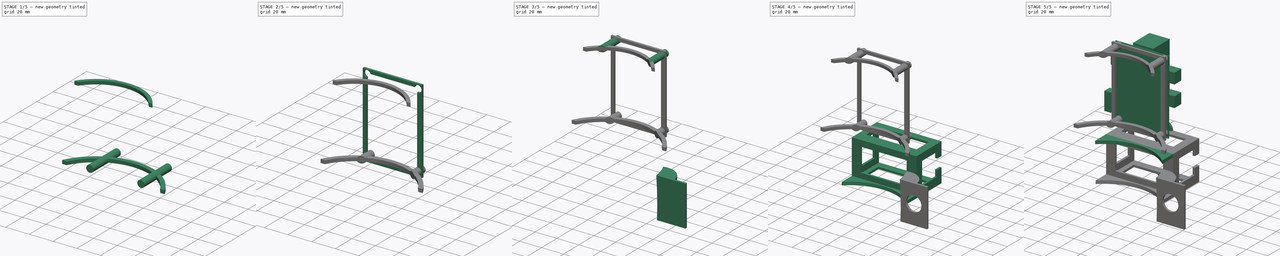
[diagram: build sequence overview — one tinted view per stage of 5, left to right]
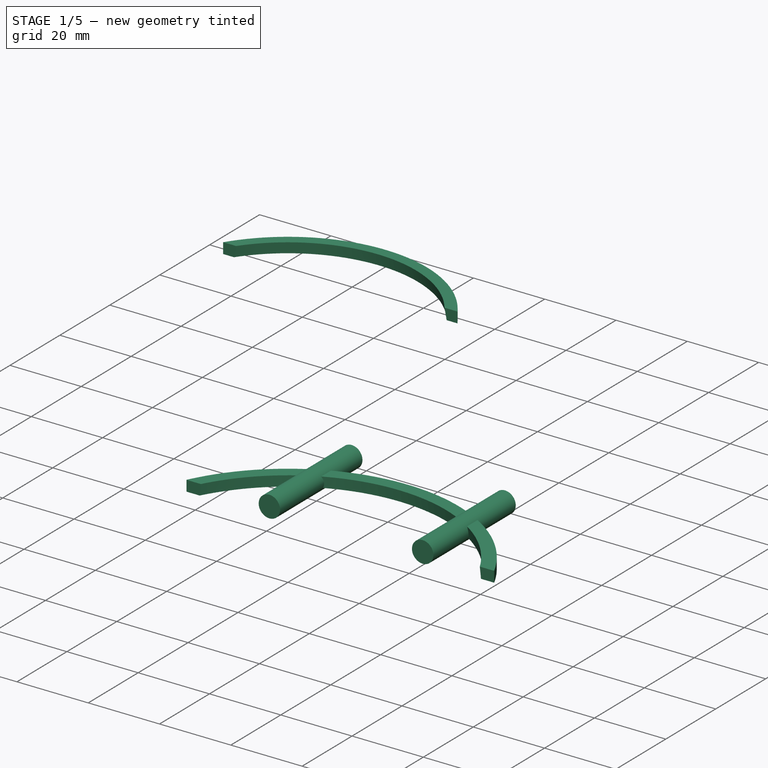
[diagram: stage 1 of 5 — iso view after this stage's code; geometry added in this stage tinted green]
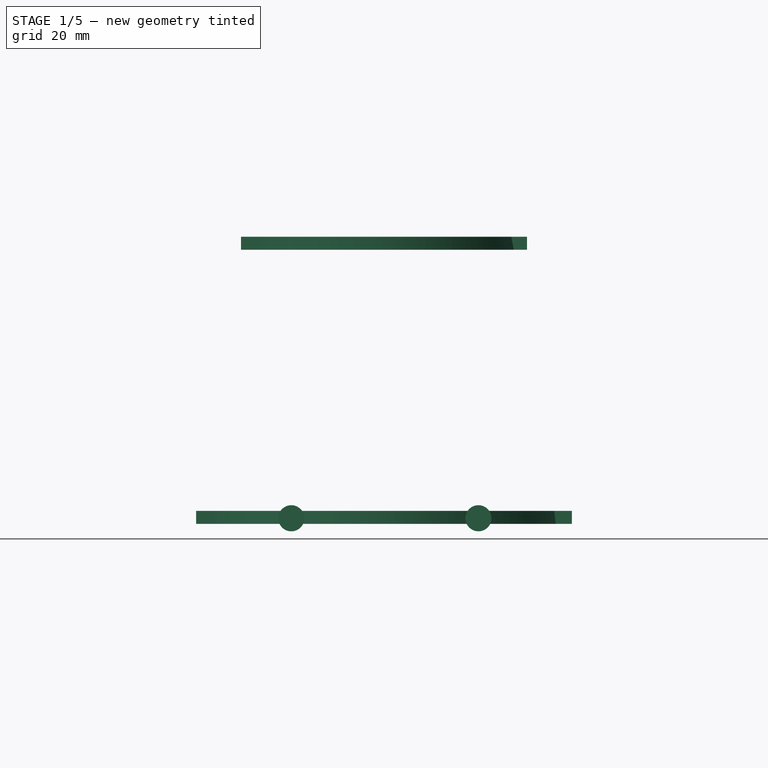
[diagram: stage 1 of 5 — front view after this stage's code; geometry added in this stage tinted green]
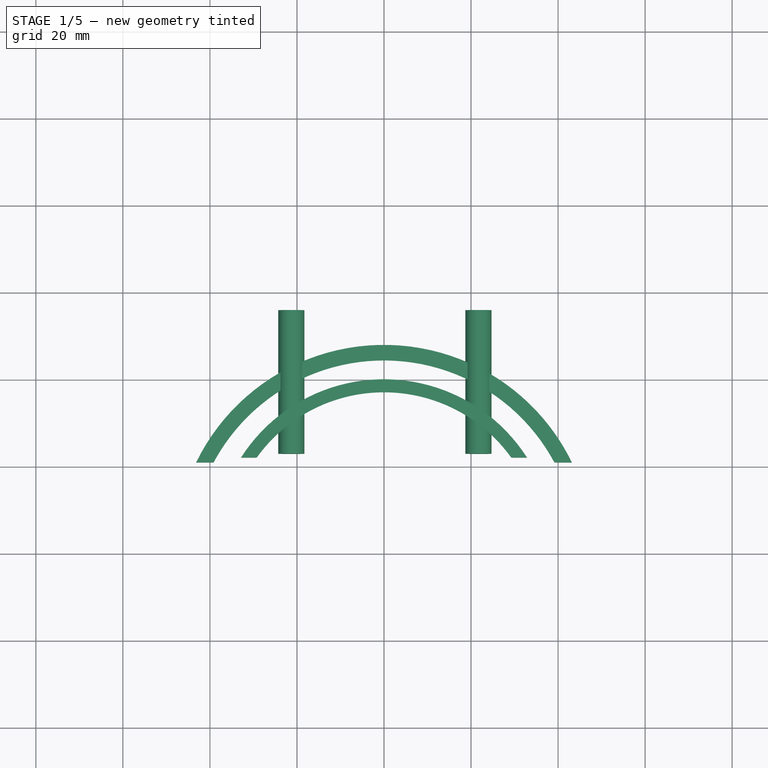
[diagram: stage 1 of 5 — top view after this stage's code; geometry added in this stage tinted green]
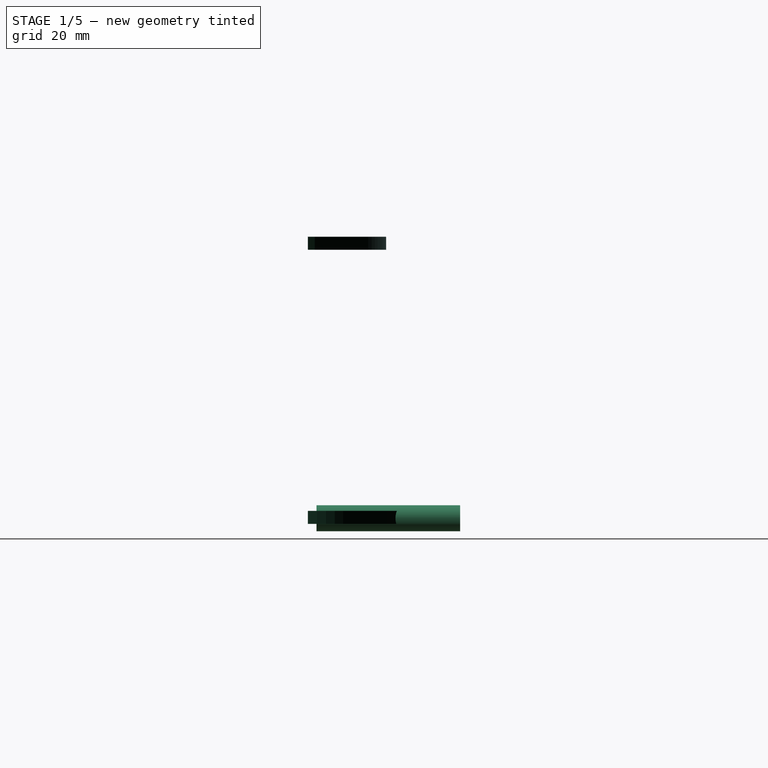
[diagram: stage 1 of 5 — right view after this stage's code; geometry added in this stage tinted green]
FCSTD DOCUMENT  (FreeCAD 0.19R24291 (Git))
Label: fart_detector_body
License: All rights reserved
LicenseURL: http://en.wikipedia.org/wiki/All_rights_reserved
objects: Part::Cut×27, Part::Cylinder×21, Part::Box×17, Part::MultiFuse×6, Sketcher::SketchObject×4, PartDesign::Body×4, PartDesign::Pad×3, PartDesign::Mirrored×2, PartDesign::Revolution×1, Part::Fuse×1
note: 90 computed .brp shape members not serialized (recipe doc carries the construction recipe); baked Part::Feature solids carry a one-line shape summary decoded from their .brp

FEATURE [Sketcher::SketchObject] Sketch
  FullyConstrained = false
  MapMode = 5
  Placement = pos=(0,0,0) rot=(1,0,0;1.5708rad)
  Support = -> [XZ_Plane]
  sketch-geometry (16):
    g0: LineSegment StartX=0 StartY=0 StartZ=0 EndX=28 EndY=0 EndZ=0
    g1: LineSegment StartX=0 StartY=204 StartZ=0 EndX=28 EndY=204 EndZ=0
    g2: GeomPoint X=28 Y=204 Z=0
    g3: GeomPoint X=42.3968 Y=116.15 Z=0
    g4: GeomPoint X=67.7426 Y=20.5268 Z=0
    g5-g8: Circle x4 (B-spline internal-alignment scaffolding for g9; pole/knot coordinates omitted)
    g9: BSplineCurve PolesCount=4 KnotsCount=2 Degree=3 IsPeriodic=0
    g10: GeomPoint X=28 Y=204 Z=0
    g11: GeomPoint X=28 Y=0 Z=0
    g12: LineSegment StartX=0 StartY=204 StartZ=0 EndX=0 EndY=0 EndZ=0
    g13: GeomPoint X=41.5 Y=16 Z=0
    g14: GeomPoint X=42.5 Y=110 Z=0
    g15: GeomPoint X=46.5 Y=65 Z=0
  constraints (22):
    c: Coincident(g0,g-1)
    c: Horizontal(g1)
    c: DistanceY(g0,g1) = 204
    c: DistanceX(g1,g1) = 28
    c: DistanceX(g0,g0) = 28
    c: Coincident(g2,g1)
    c: Coincident(g9,g1)
    c: Coincident(g6,g3)
    c: Coincident(g7,g4)
    c: Coincident(g9,g0)
    c: InternalAlignment(g5-g8 -> g9) x4
    c: InternalAlignment(g10,g9)
    c: InternalAlignment(g11,g9)
    c: Coincident(g12,g1)
    c: Coincident(g12,g0)
    c: Horizontal(g0)
    c: DistanceY(g0,g13) = 16
    c: DistanceX(g0,g13) = 41.5
    c: DistanceY(g0,g14) = 110
    c: DistanceX(g14) = 42.5
    c: DistanceY(g0,g15) = 65
    c: DistanceX(g0,g15) = 46.5
FEATURE [PartDesign::Revolution] Revolution
  Angle = 360
  Axis = (-3e-16,3e-16,1)
  Base = (0,0,0)
  Placement = pos=(0,0,0) rot=(1,0,0;1.5708rad)
  Profile = -> Sketch
  ReferenceAxis = -> Z_Axis
  Reversed = true
FEATURE [PartDesign::Body] Body  label="spray_body"
  Group = -> [Sketch,Revolution]
  Origin = -> Origin
  Tip = -> Revolution
FEATURE [Sketcher::SketchObject] Sketch001
  AttachmentOffset = pos=(0,130,0) rot=(0,0,1;0rad)
  FullyConstrained = false
  MapMode = 5
  Placement = pos=(0,-2.89e-14,130) rot=(1,0,0;1.5708rad)
  Support = -> [XZ_Plane001]
  sketch-geometry (3):
    g0: LineSegment StartX=3.6e-15 StartY=-3.6e-15 StartZ=0 EndX=3.6e-15 EndY=32 EndZ=0
    g1: GeomPoint X=8 Y=16 Z=0
    g2: ArcOfCircle CenterX=-11.9069 CenterY=16 CenterZ=0 NormalX=0 NormalY=0 NormalZ=1 AngleXU=0 Radius=19.9443 StartAngle=5.35216 EndAngle=7.21422
  constraints (7):
    c: Coincident(g0,g-1)
    c: Vertical(g0)
    c: Coincident(g2,g0)
    c: Coincident(g2,g0)
    c: DistanceY(g0,g0) = 32
    c: DistanceY(g0,g1) = 16
    c: DistanceX(g0,g1) = 8
FEATURE [PartDesign::Pad] Pad
  Direction = (1,1,1)
  Length = 100
  Length2 = 100
  Placement = pos=(0,0,0) rot=(1,0,0;1.5708rad)
  Profile = -> Sketch001
  Type = 0
FEATURE [PartDesign::Mirrored] Mirrored
  BaseFeature = -> Pad
  MirrorPlane = -> Sketch001 [V_Axis]
  Originals = -> [Pad]
  Placement = pos=(0,0,0) rot=(1,0,0;1.5708rad)
FEATURE [PartDesign::Body] Body001  label="hole001"
  Group = -> [Sketch001,Pad,Mirrored]
  Origin = -> Origin001
  Tip = -> Mirrored
FEATURE [Sketcher::SketchObject] Sketch002
  AttachmentOffset = pos=(0,164,0) rot=(0,0,1;0rad)
  FullyConstrained = false
  MapMode = 5
  Placement = pos=(0,-3.64e-14,164) rot=(1,0,0;1.5708rad)
  Support = -> [XZ_Plane002]
  sketch-geometry (3):
    g0: LineSegment StartX=0 StartY=3.6e-15 StartZ=0 EndX=0 EndY=26 EndZ=0
    g1: GeomPoint X=7 Y=13 Z=0
    g2: ArcOfCircle CenterX=-8.61125 CenterY=13 CenterZ=0 NormalX=0 NormalY=0 NormalZ=1 AngleXU=0 Radius=15.5934 StartAngle=5.29743 EndAngle=7.26894
  constraints (7):
    c: Coincident(g0,g-1)
    c: Vertical(g0)
    c: Coincident(g2,g0)
    c: Coincident(g2,g0)
    c: DistanceY(g0,g0) = 26
    c: DistanceY(g0,g1) = 13
    c: DistanceX(g0,g1) = 7
FEATURE [PartDesign::Pad] Pad001
  Direction = (1,1,1)
  Length = 100
  Length2 = 100
  Placement = pos=(0,0,0) rot=(1,0,0;1.5708rad)
  Profile = -> Sketch002
  Reversed = true
  Type = 0
FEATURE [PartDesign::Mirrored] Mirrored001
  BaseFeature = -> Pad001
  MirrorPlane = -> Sketch002 [V_Axis]
  Originals = -> [Pad001]
  Placement = pos=(0,0,0) rot=(1,0,0;1.5708rad)
FEATURE [PartDesign::Body] Body002  label="hole002"
  Group = -> [Sketch002,Pad001,Mirrored001]
  Origin = -> Origin002
  Tip = -> Mirrored001
FEATURE [Part::Fuse] Fusion  label="holes"
  Base = -> Body001
  Tool = -> Body002
FEATURE [Part::Cut] Cut  label="spray"
  Base = -> Body
  Placement = pos=(0,0,-70) rot=(0,0,1;0rad)
  Tool = -> Fusion
FEATURE [Part::Cylinder] Cylinder017  label="board_stand006"
  Angle = 360
  AttacherType = Attacher::AttachEngine3D
  Height = 33
  Placement = pos=(-21.3,56,23.3) rot=(1,0,0;1.5708rad)
  Radius = 3
FEATURE [Part::Cylinder] Cylinder018  label="board_stand007"
  Angle = 360
  AttacherType = Attacher::AttachEngine3D
  Height = 33
  Placement = pos=(21.7,56,23.3) rot=(1,0,0;1.5708rad)
  Radius = 3
FEATURE [Part::Cylinder] Cylinder019  label="board_holder"
  Angle = 360
  AttacherType = Attacher::AttachEngine3D
  Height = 3
  Placement = pos=(0,0,85) rot=(0,0,1;0rad)
  Radius = 39
FEATURE [Part::Cylinder] Cylinder020  label="board_holder001"
  Angle = 360
  AttacherType = Attacher::AttachEngine3D
  Height = 3
  Placement = pos=(0,0,22) rot=(0,0,1;0rad)
  Radius = 48
FEATURE [Part::Cut] Cut034
  Base = -> Cylinder020
  Tool = -> Cut
FEATURE [Part::Cut] Cut035
  Base = -> Cylinder019
  Tool = -> Cut
FEATURE [Part::MultiFuse] Fusion005
  Shapes = -> [Cut034,Cut035]
FEATURE [Part::Box] Box022  label="cropper"
  AttacherType = Attacher::AttachEngine3D
  Height = 95
  Length = 115
  Placement = pos=(-54,-49,0) rot=(0,0,1;0rad)
  Width = 70
FEATURE [Part::Cut] Cut036  label="board_connectors"
  Base = -> Fusion005
  Tool = -> Box022
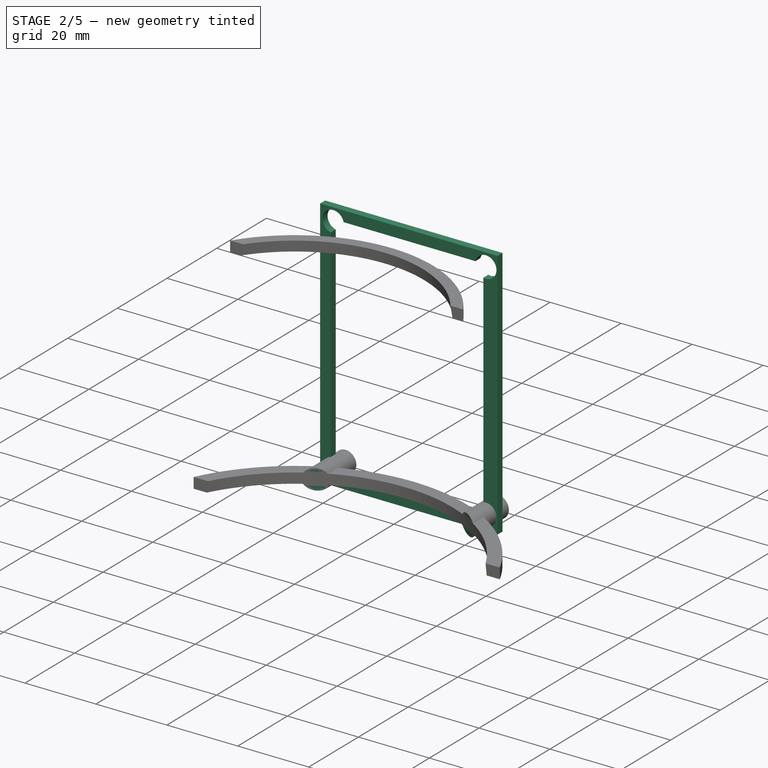
[diagram: stage 2 of 5 — iso view after this stage's code; geometry added in this stage tinted green]
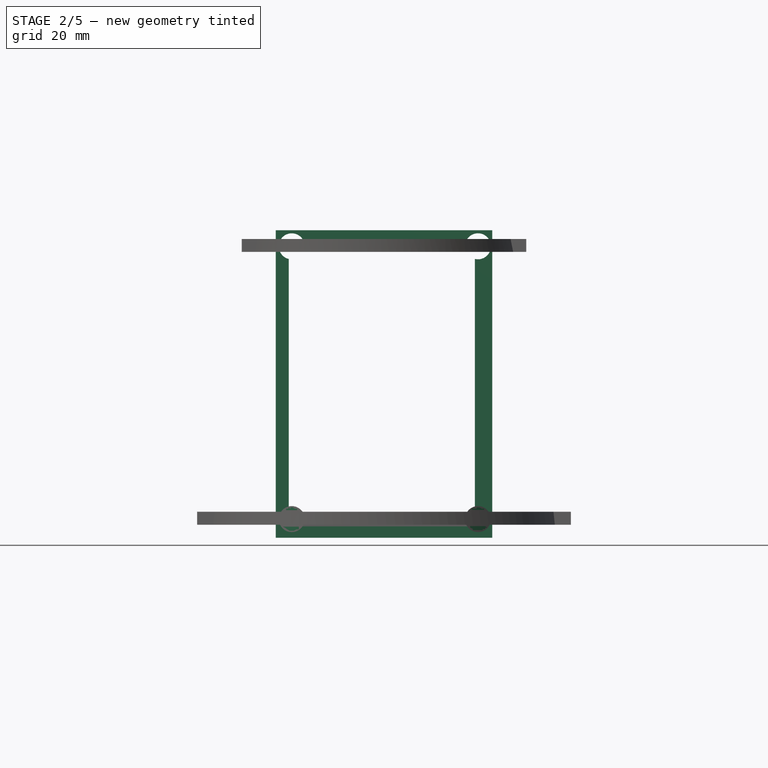
[diagram: stage 2 of 5 — front view after this stage's code; geometry added in this stage tinted green]
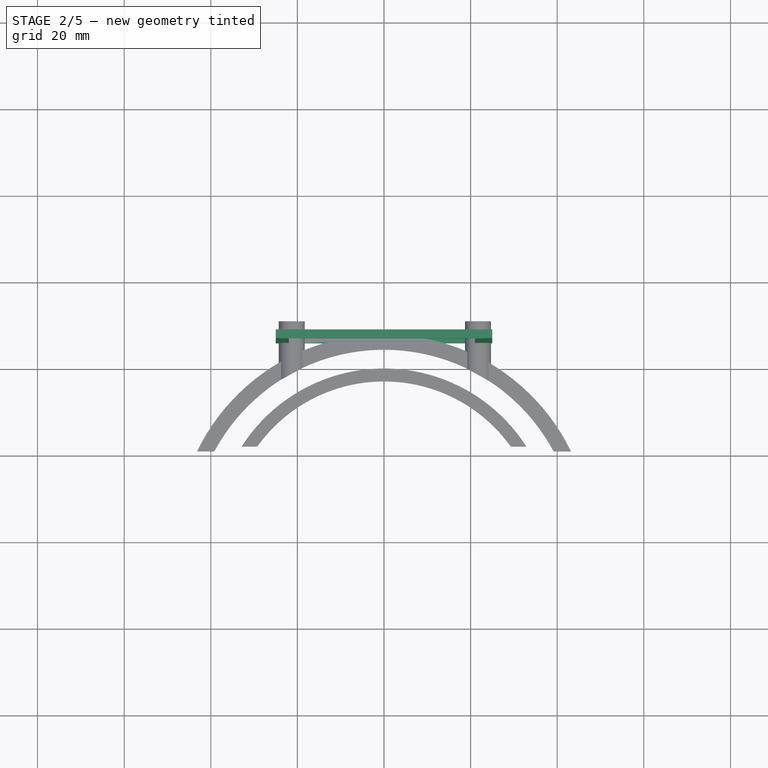
[diagram: stage 2 of 5 — top view after this stage's code; geometry added in this stage tinted green]
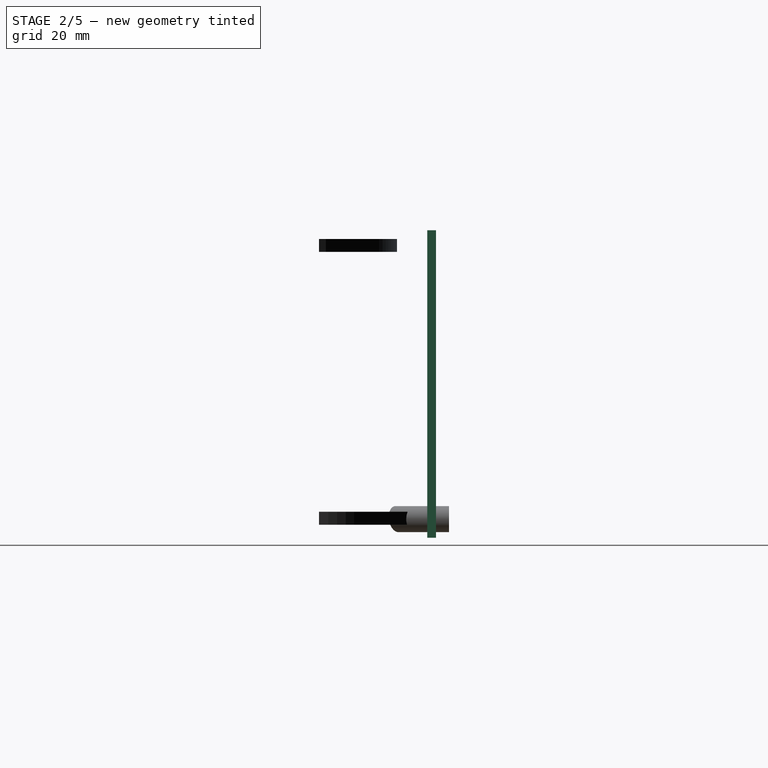
[diagram: stage 2 of 5 — right view after this stage's code; geometry added in this stage tinted green]
FEATURE [Part::Cylinder] Cylinder011  label="board_hole002"
  Angle = 360
  AttacherType = Attacher::AttachEngine3D
  Height = 10
  Placement = pos=(21.72,59,86.27) rot=(1,0,0;1.5708rad)
  Radius = 0.9
FEATURE [Part::Cylinder] Cylinder012  label="board_stand002"
  Angle = 360
  AttacherType = Attacher::AttachEngine3D
  Height = 33
  Placement = pos=(21.7,56,86.3) rot=(1,0,0;1.5708rad)
  Radius = 3
FEATURE [Part::Cut] Cut027
  Base = -> Cylinder012
  Placement = pos=(-43,-5,-63) rot=(0,0,1;0rad)
  Tool = -> Cylinder011
FEATURE [Part::Cylinder] Cylinder013  label="board_hole003"
  Angle = 360
  AttacherType = Attacher::AttachEngine3D
  Height = 10
  Placement = pos=(21.72,59,86.27) rot=(1,0,0;1.5708rad)
  Radius = 0.9
FEATURE [Part::Cylinder] Cylinder014  label="board_stand003"
  Angle = 360
  AttacherType = Attacher::AttachEngine3D
  Height = 33
  Placement = pos=(21.7,56,86.3) rot=(1,0,0;1.5708rad)
  Radius = 3
FEATURE [Part::Cut] Cut028
  Base = -> Cylinder014
  Placement = pos=(0,-5,-63) rot=(0,0,1;0rad)
  Tool = -> Cylinder013
FEATURE [Part::Cut] Cut030  label="board_stand_with_hole002"
  Base = -> Cut028
  Tool = -> Cut
FEATURE [Part::Cut] Cut031  label="board_stand_with_hole003"
  Base = -> Cut027
  Tool = -> Cut
FEATURE [Part::Box] Box020  label="stiffener"
  AttacherType = Attacher::AttachEngine3D
  Height = 71
  Length = 50
  Placement = pos=(-25,46,19) rot=(0,0,1;0rad)
  Width = 2
FEATURE [Part::Box] Box021  label="stiffener_hole"
  AttacherType = Attacher::AttachEngine3D
  Height = 64
  Length = 43
  Placement = pos=(-22,46,23) rot=(0,0,1;0rad)
  Width = 2
FEATURE [Part::Cut] Cut032  label="stiffener_with_hole"
  Base = -> Box020
  Tool = -> Box021
FEATURE [Part::Cylinder] Cylinder015  label="board_stand004"
  Angle = 360
  AttacherType = Attacher::AttachEngine3D
  Height = 33
  Placement = pos=(21.7,56,86.3) rot=(1,0,0;1.5708rad)
  Radius = 3
FEATURE [Part::Cylinder] Cylinder016  label="board_stand005"
  Angle = 360
  AttacherType = Attacher::AttachEngine3D
  Height = 33
  Placement = pos=(-21.3,56,86.3) rot=(1,0,0;1.5708rad)
  Radius = 3
FEATURE [Part::MultiFuse] Fusion004
  Shapes = -> [Cylinder015,Cylinder016,Cylinder017,Cylinder018]
FEATURE [Part::Cut] Cut033  label="cutted_stiffener"
  Base = -> Cut032
  Tool = -> Fusion004
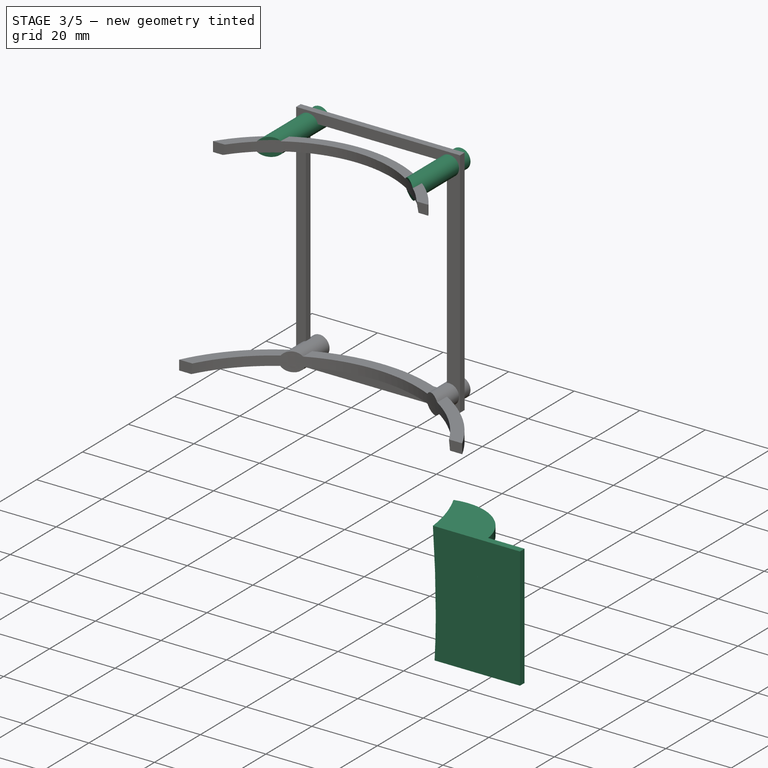
[diagram: stage 3 of 5 — iso view after this stage's code; geometry added in this stage tinted green]
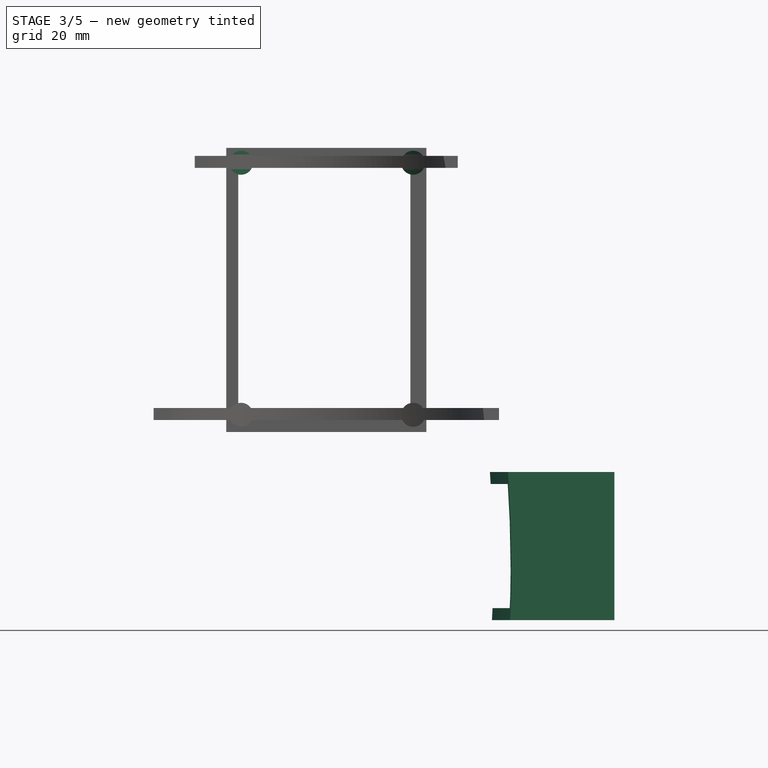
[diagram: stage 3 of 5 — front view after this stage's code; geometry added in this stage tinted green]
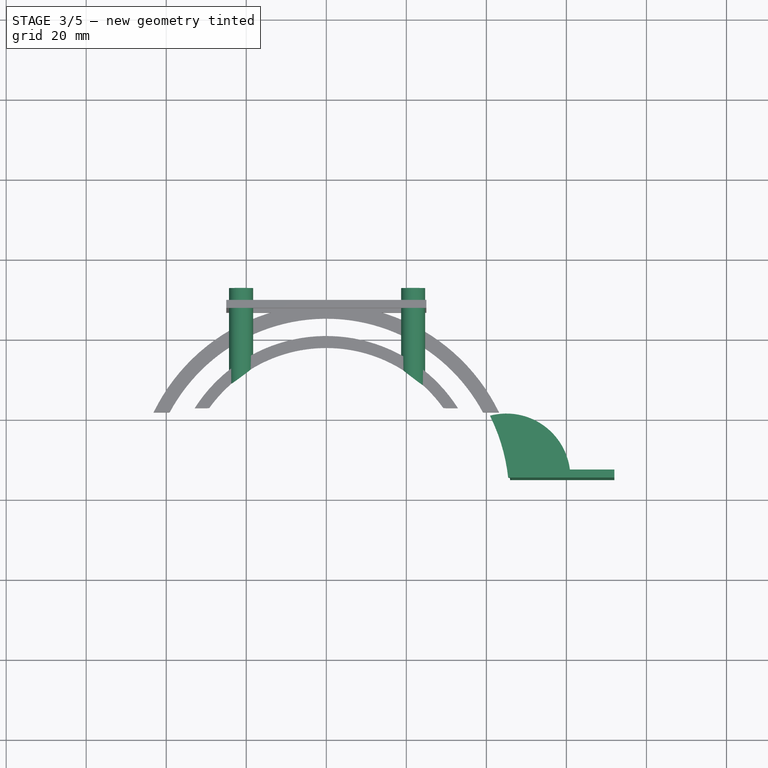
[diagram: stage 3 of 5 — top view after this stage's code; geometry added in this stage tinted green]
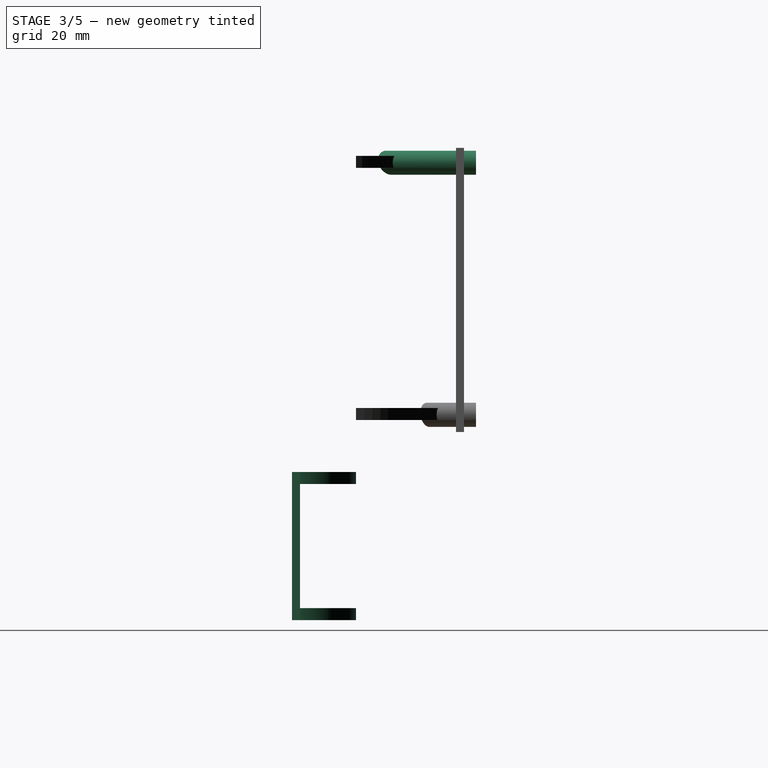
[diagram: stage 3 of 5 — right view after this stage's code; geometry added in this stage tinted green]
FEATURE [Part::Box] Box010  label="button_plane"
  AttacherType = Attacher::AttachEngine3D
  Height = 37
  Length = 28
  Placement = pos=(44,5,-28) rot=(0,0,1;0rad)
  Width = 2
FEATURE [Part::Cylinder] Cylinder005  label="button_hole"
  Angle = 360
  AttacherType = Attacher::AttachEngine3D
  Height = 2
  Placement = pos=(59,7,-9) rot=(1,0,0;1.5708rad)
  Radius = 7.5
FEATURE [Part::Cut] Cut008  label="cropped_plane"
  Base = -> Box010
  Tool = -> Cut
FEATURE [Part::Cylinder] Cylinder  label="button_holder001"
  Angle = 150
  AttacherType = Attacher::AttachEngine3D
  Height = 3
  Placement = pos=(45,5,6) rot=(0,0,1;0rad)
  Radius = 16
FEATURE [Part::Cylinder] Cylinder006  label="button_holder002"
  Angle = 150
  AttacherType = Attacher::AttachEngine3D
  Height = 3
  Placement = pos=(45,5,-28) rot=(0,0,1;0rad)
  Radius = 16
FEATURE [Part::Cut] Cut021
  Base = -> Cylinder
  Tool = -> Cut
FEATURE [Part::Cut] Cut022
  Base = -> Cylinder006
  Tool = -> Cut
FEATURE [Part::Cylinder] Cylinder007  label="board_stand"
  Angle = 360
  AttacherType = Attacher::AttachEngine3D
  Height = 33
  Placement = pos=(21.7,56,86.3) rot=(1,0,0;1.5708rad)
  Radius = 3
FEATURE [Part::Cylinder] Cylinder008  label="board_hole"
  Angle = 360
  AttacherType = Attacher::AttachEngine3D
  Height = 15
  Placement = pos=(21.72,59,86.27) rot=(1,0,0;1.5708rad)
  Radius = 0.9
FEATURE [Part::Cut] Cut023
  Base = -> Cylinder007
  Placement = pos=(0,-5,0) rot=(0,0,1;0rad)
  Tool = -> Cylinder008
FEATURE [Part::Cut] Cut024  label="board_stand_with_hole"
  Base = -> Cut023
  Tool = -> Cut
FEATURE [Part::Cylinder] Cylinder009  label="board_hole001"
  Angle = 360
  AttacherType = Attacher::AttachEngine3D
  Height = 15
  Placement = pos=(21.72,59,86.27) rot=(1,0,0;1.5708rad)
  Radius = 0.9
FEATURE [Part::Cylinder] Cylinder010  label="board_stand001"
  Angle = 360
  AttacherType = Attacher::AttachEngine3D
  Height = 33
  Placement = pos=(21.7,56,86.3) rot=(1,0,0;1.5708rad)
  Radius = 3
FEATURE [Part::Cut] Cut026
  Base = -> Cylinder010
  Placement = pos=(-43,-5,0) rot=(0,0,1;0rad)
  Tool = -> Cylinder009
FEATURE [Part::Cut] Cut029  label="board_stand_with_hole001"
  Base = -> Cut026
  Tool = -> Cut
FEATURE [Part::MultiFuse] Fusion006  label="board_section"
  Shapes = -> [Cut024,Cut029,Cut030,Cut031,Cut033,Cut036]
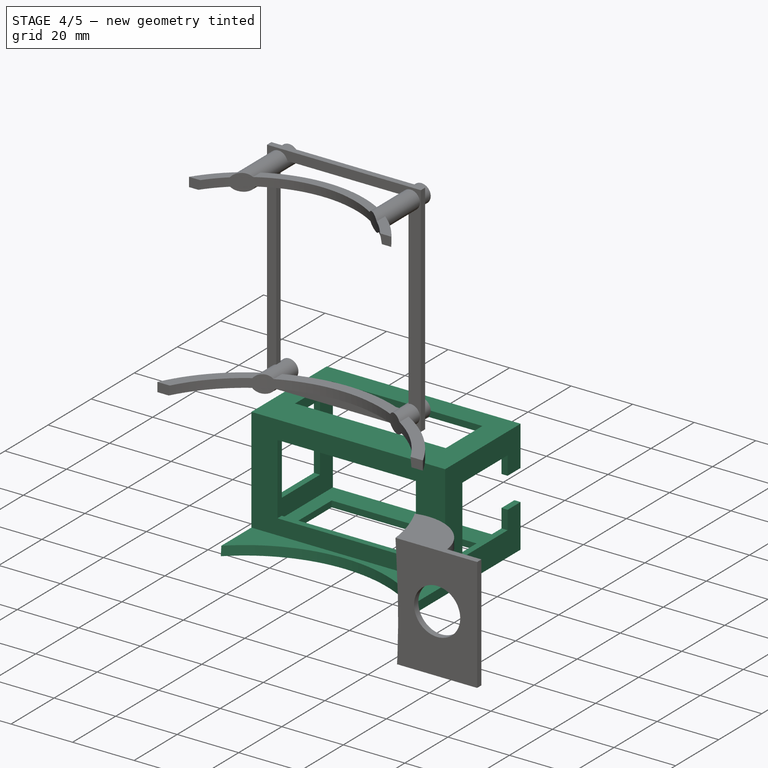
[diagram: stage 4 of 5 — iso view after this stage's code; geometry added in this stage tinted green]
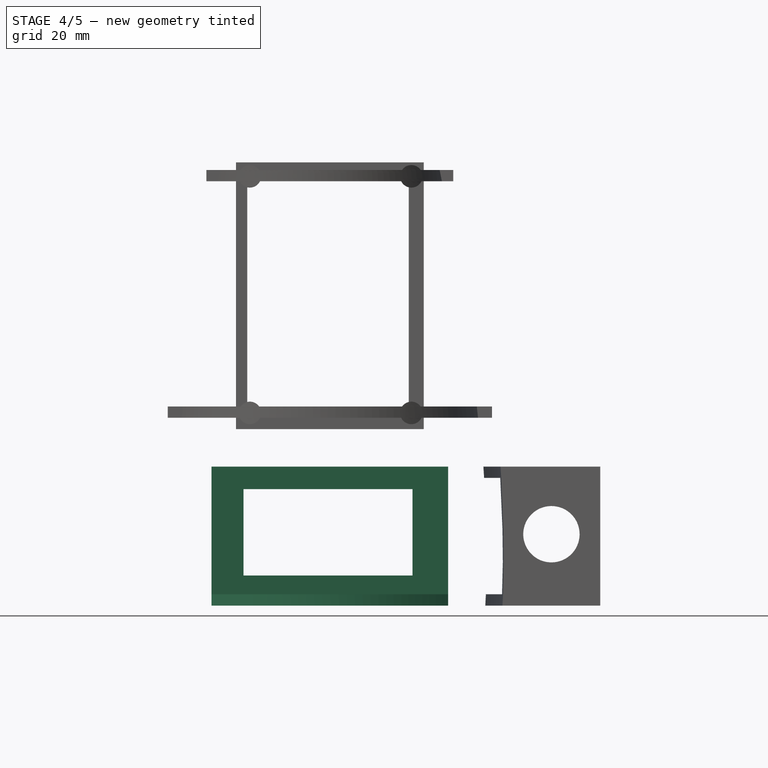
[diagram: stage 4 of 5 — front view after this stage's code; geometry added in this stage tinted green]
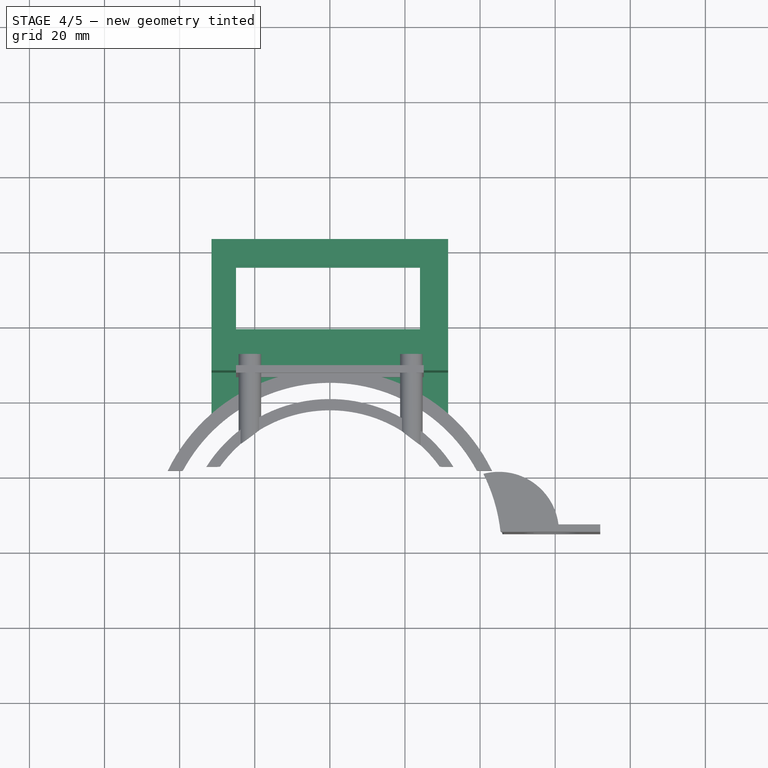
[diagram: stage 4 of 5 — top view after this stage's code; geometry added in this stage tinted green]
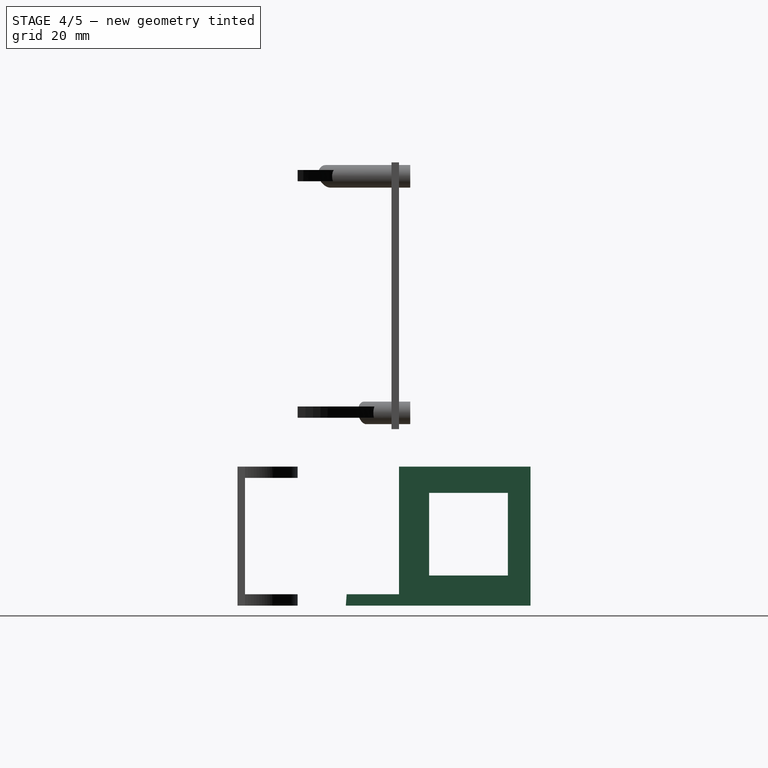
[diagram: stage 4 of 5 — right view after this stage's code; geometry added in this stage tinted green]
FEATURE [Part::Box] Box005  label="battery_block"
  AttacherType = Attacher::AttachEngine3D
  Height = 33
  Length = 59
  Placement = pos=(-29.5,50,-26) rot=(0,0,1;0rad)
  Width = 33
FEATURE [Part::Box] Box006  label="battery_body"
  AttacherType = Attacher::AttachEngine3D
  Height = 37
  Length = 63
  Placement = pos=(-31.5,48,-28) rot=(0,0,1;0rad)
  Width = 35
FEATURE [Part::Box] Box008
  AttacherType = Attacher::AttachEngine3D
  Height = 3
  Length = 63
  Placement = pos=(-31.5,-4,-28) rot=(0,0,1;0rad)
  Width = 52
FEATURE [Part::Cut] Cut006  label="bottom_holder"
  Base = -> Box008
  Tool = -> Cut
FEATURE [Part::Cut] Cut009  label="button_holder"
  Base = -> Cut008
  Tool = -> Cylinder005
FEATURE [Part::Cut] Cut001
  Base = -> Box006
  Tool = -> Box005
FEATURE [Part::Box] Box016  label="lighter"
  AttacherType = Attacher::AttachEngine3D
  Height = 41
  Length = 49
  Placement = pos=(-25,59,-31) rot=(0,0,1;0rad)
  Width = 17
FEATURE [Part::Cut] Cut017
  Base = -> Cut001
  Tool = -> Box016
FEATURE [Part::Box] Box017  label="lighter001"
  AttacherType = Attacher::AttachEngine3D
  Height = 22
  Length = 68
  Placement = pos=(-34,56,-20) rot=(0,0,1;0rad)
  Width = 21
FEATURE [Part::Cut] Cut018
  Base = -> Cut017
  Tool = -> Box017
FEATURE [Part::Box] Box018  label="lighter002"
  AttacherType = Attacher::AttachEngine3D
  Height = 23
  Length = 45
  Placement = pos=(-23,37,-20) rot=(0,0,1;0rad)
  Width = 22
FEATURE [Part::Cut] Cut019
  Base = -> Cut018
  Tool = -> Box018
FEATURE [Part::Box] Box019  label="wires_cut"
  AttacherType = Attacher::AttachEngine3D
  Height = 10
  Length = 10
  Placement = pos=(25,76,-14) rot=(0,0,1;0rad)
  Width = 10
FEATURE [Part::Cut] Cut020
  Base = -> Cut019
  Tool = -> Box019
FEATURE [Part::MultiFuse] Fusion003  label="button_section"
  Shapes = -> [Cut021,Cut022,Cut009]
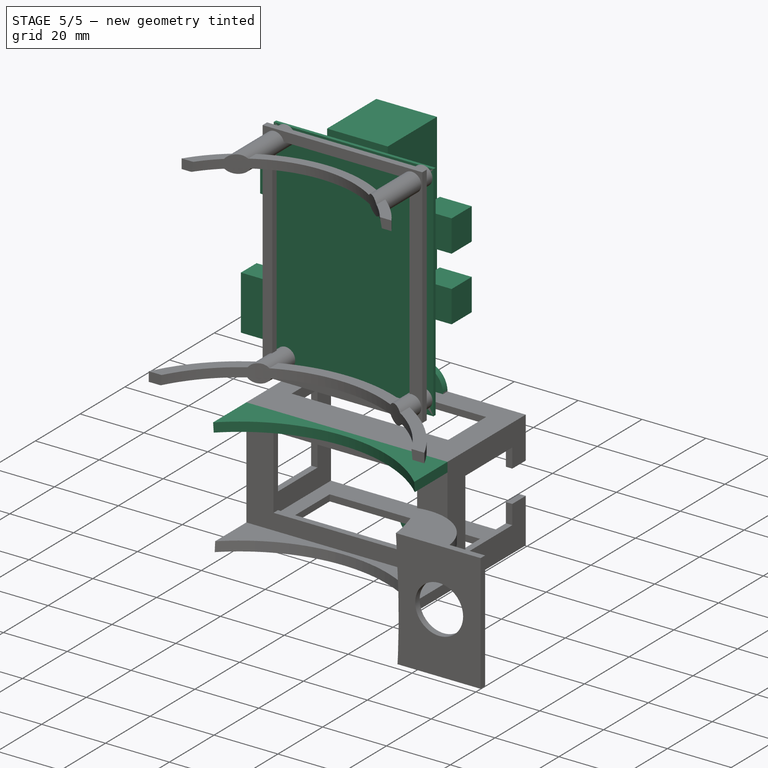
[diagram: stage 5 of 5 — iso view after this stage's code; geometry added in this stage tinted green]
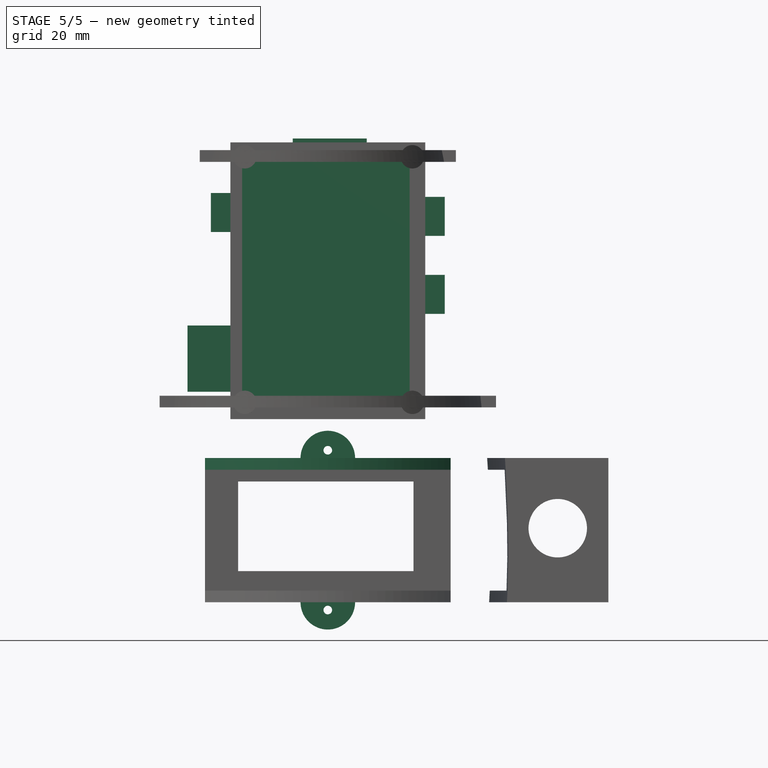
[diagram: stage 5 of 5 — front view after this stage's code; geometry added in this stage tinted green]
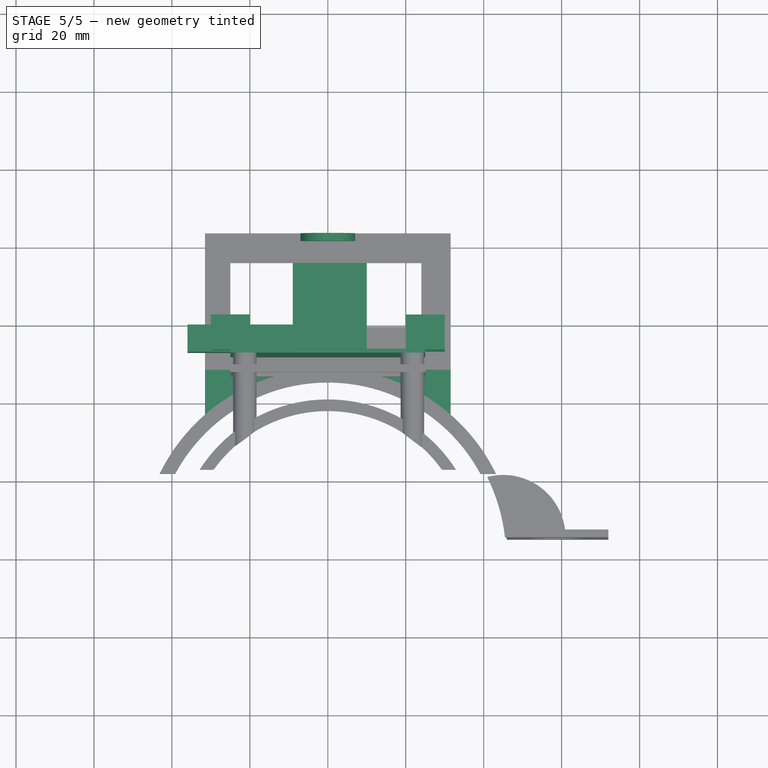
[diagram: stage 5 of 5 — top view after this stage's code; geometry added in this stage tinted green]
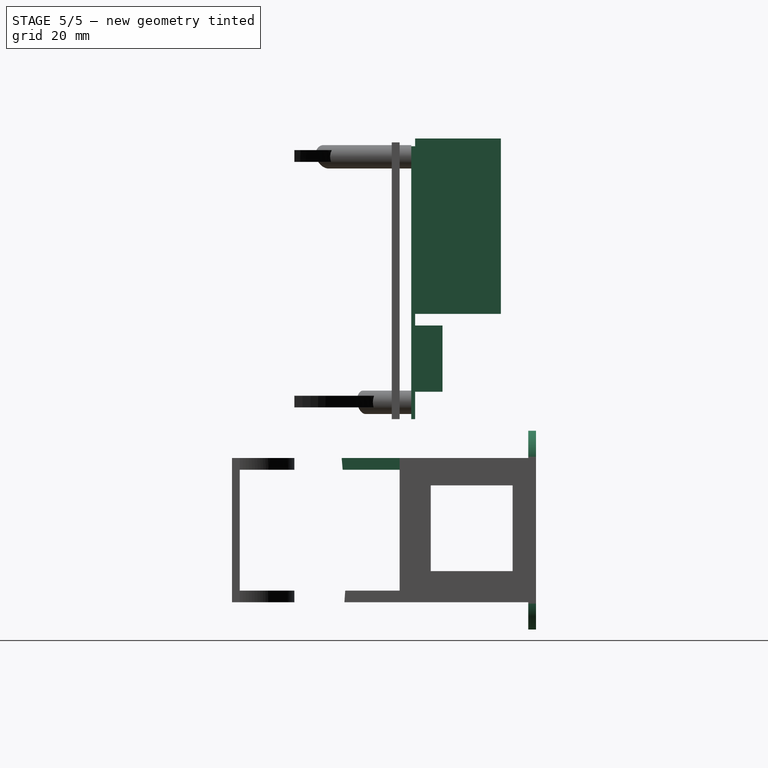
[diagram: stage 5 of 5 — right view after this stage's code; geometry added in this stage tinted green]
FEATURE [Sketcher::SketchObject] Sketch003
  FullyConstrained = true
  Placement = pos=(0,0,0) rot=(1,0,0;1.5708rad)
  sketch-geometry (8):
    g0: LineSegment StartX=0 StartY=0 StartZ=0 EndX=50 EndY=0 EndZ=0
    g1: LineSegment StartX=50 StartY=0 StartZ=0 EndX=50 EndY=-70 EndZ=0
    g2: LineSegment StartX=50 StartY=-70 StartZ=0 EndX=0 EndY=-70 EndZ=0
    g3: LineSegment StartX=0 StartY=-70 StartZ=0 EndX=0 EndY=0 EndZ=0
    g4: Circle CenterX=3.27 CenterY=-2.73 CenterZ=0 NormalX=0 NormalY=0 NormalZ=1 AngleXU=0 Radius=0.9
    g5: Circle CenterX=46.27 CenterY=-2.73 CenterZ=0 NormalX=0 NormalY=0 NormalZ=1 AngleXU=0 Radius=0.9
    g6: Circle CenterX=3.27 CenterY=-65.73 CenterZ=0 NormalX=0 NormalY=0 NormalZ=1 AngleXU=0 Radius=0.9
    g7: Circle CenterX=46.27 CenterY=-65.73 CenterZ=0 NormalX=0 NormalY=0 NormalZ=1 AngleXU=0 Radius=0.9
  constraints (23):
    c: Coincident(g0,g1)
    c: Coincident(g1,g2)
    c: Coincident(g2,g3)
    c: Coincident(g3,g0)
    c: Horizontal(g0)
    c: Horizontal(g2)
    c: Vertical(g1)
    c: Vertical(g3)
    c: Coincident(g0,g-1)
    c: DistanceY(g3,g3) = 70
    c: DistanceX(g0,g0) = 50
    c: Diameter(g4) = 1.8
    c: Diameter(g5) = 1.8
    c: Diameter(g6) = 1.8
    c: Diameter(g7) = 1.8
    c: DistanceY(g4,g0) = 2.73
    c: DistanceX(g0,g4) = 3.27
    c: DistanceY(g5,g0) = 2.73
    c: DistanceX(g0,g5) = 46.27
    c: DistanceX(g2,g7) = 46.27
    c: DistanceY(g7,g0) = 65.73
    c: DistanceY(g6,g0) = 65.73
    c: DistanceX(g2,g6) = 3.27
FEATURE [PartDesign::Pad] Pad002
  Direction = (1,1,1)
  Length = 1
  Length2 = 100
  Placement = pos=(0,0,0) rot=(1,0,0;1.5708rad)
  Profile = -> Sketch003
  Type = 0
FEATURE [PartDesign::Body] Body003  label="board"
  Group = -> [Sketch003,Pad002]
  Origin = -> Origin003
  Tip = -> Pad002
FEATURE [Part::Box] Box  label="socket"
  AttacherType = Attacher::AttachEngine3D
  Height = 10
  Length = 10
  Placement = pos=(-5,-10,-23) rot=(0,0,1;0rad)
  Width = 9
FEATURE [Part::Box] Box001  label="socket001"
  AttacherType = Attacher::AttachEngine3D
  Height = 10
  Length = 10
  Placement = pos=(-5,-10,-43) rot=(0,0,1;0rad)
  Width = 9
FEATURE [Part::Box] Box002  label="socket002"
  AttacherType = Attacher::AttachEngine3D
  Height = 10
  Length = 10
  Placement = pos=(45,-10,-22) rot=(0,0,1;0rad)
  Width = 9
FEATURE [Part::Box] Box003  label="arduino"
  AttacherType = Attacher::AttachEngine3D
  Height = 45
  Length = 19
  Placement = pos=(15,-23,-43) rot=(0,0,1;0rad)
  Width = 22
FEATURE [Part::Box] Box004  label="bluetooth"
  AttacherType = Attacher::AttachEngine3D
  Height = 17
  Length = 38
  Placement = pos=(23,-8,-63) rot=(0,0,1;0rad)
  Width = 7
FEATURE [Part::MultiFuse] Fusion001  label="board001"
  Placement = pos=(25,51,89) rot=(0,0,1;3.14159rad)
  Shapes = -> [Body003,Box,Box001,Box002,Box003,Box004]
FEATURE [Part::Cylinder] Cylinder001  label="screw_holder"
  Angle = 180
  AttacherType = Attacher::AttachEngine3D
  Height = 2
  Placement = pos=(0,83,9) rot=(1,0,0;1.5708rad)
  Radius = 7
FEATURE [Part::Cylinder] Cylinder002  label="screw_hole"
  Angle = 360
  AttacherType = Attacher::AttachEngine3D
  Height = 2
  Placement = pos=(0,83,11) rot=(1,0,0;1.5708rad)
  Radius = 1.1
FEATURE [Part::Cut] Cut003  label="top_screw"
  Base = -> Cylinder001
  Tool = -> Cylinder002
FEATURE [Part::Cylinder] Cylinder003  label="screw_holder001"
  Angle = 180
  AttacherType = Attacher::AttachEngine3D
  Height = 2
  Placement = pos=(0,81,-28) rot=(-1,0,0;1.5708rad)
  Radius = 7
FEATURE [Part::Cylinder] Cylinder004  label="screw_hole001"
  Angle = 360
  AttacherType = Attacher::AttachEngine3D
  Height = 2
  Placement = pos=(0,83,-30) rot=(1,0,0;1.5708rad)
  Radius = 1.1
FEATURE [Part::Cut] Cut004  label="bottom_screw"
  Base = -> Cylinder003
  Tool = -> Cylinder004
FEATURE [Part::Box] Box007  label="Box"
  AttacherType = Attacher::AttachEngine3D
  Height = 3
  Length = 63
  Placement = pos=(-31.5,-4,6) rot=(0,0,1;0rad)
  Width = 52
FEATURE [Part::Cut] Cut005  label="upper_holder"
  Base = -> Box007
  Tool = -> Cut
FEATURE [Part::MultiFuse] Fusion002  label="battary_section"
  Shapes = -> [Cut020,Cut006,Cut005,Cut004,Cut003]
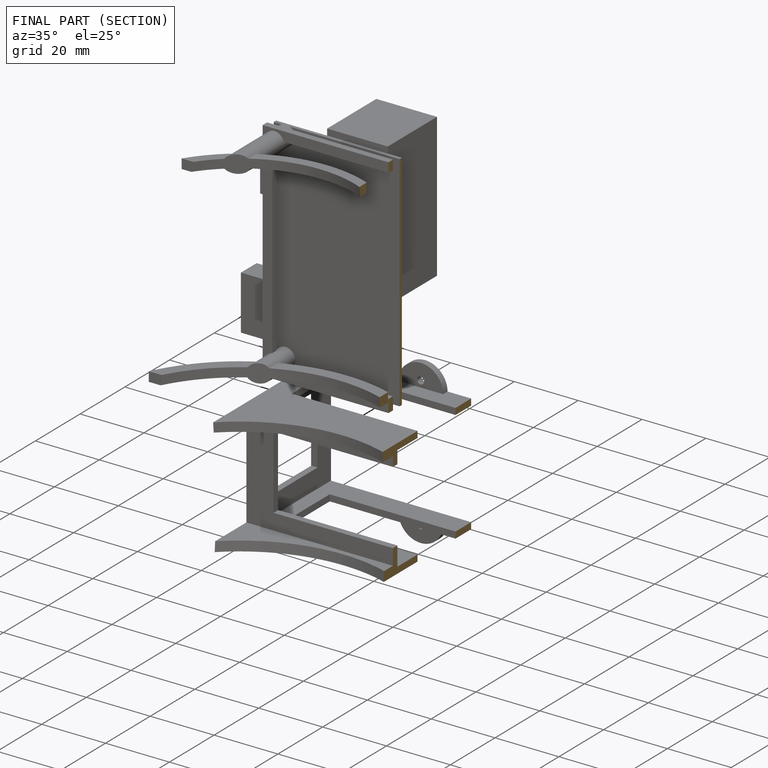
[diagram: finished part — half-section view (interior)]
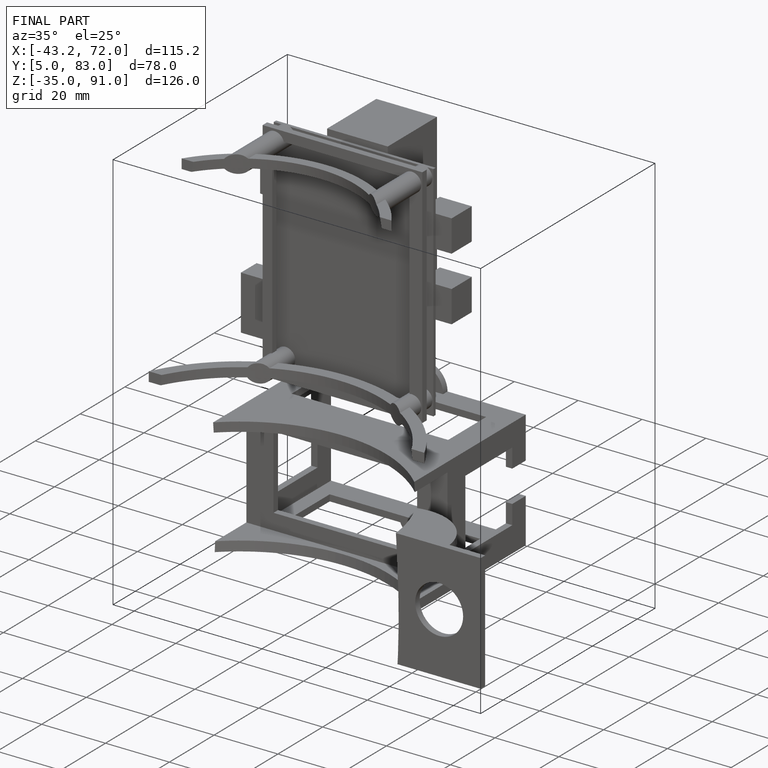
[diagram: finished part — iso view with bounding-box wireframe]
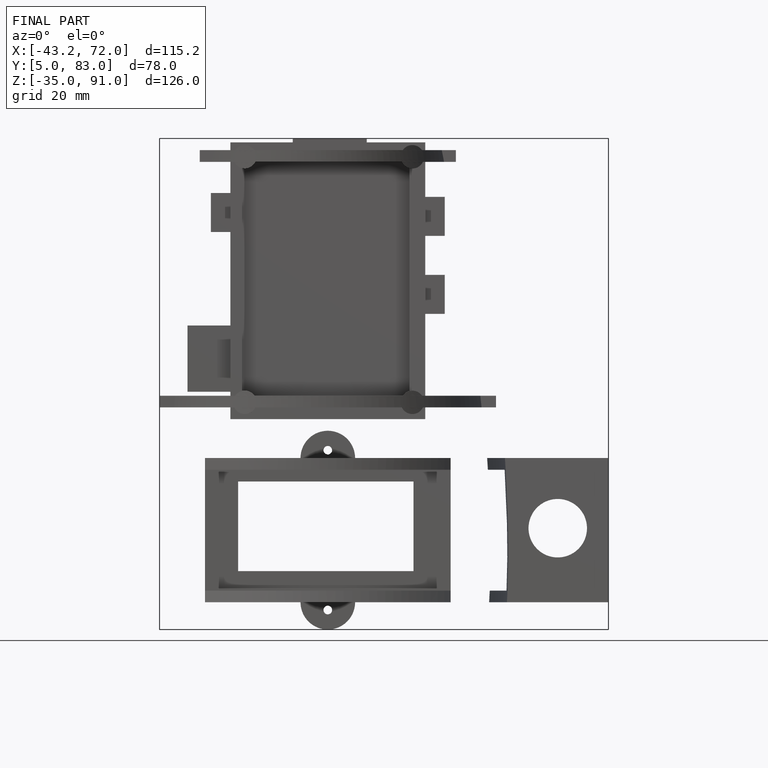
[diagram: finished part — front view with bounding-box wireframe]
